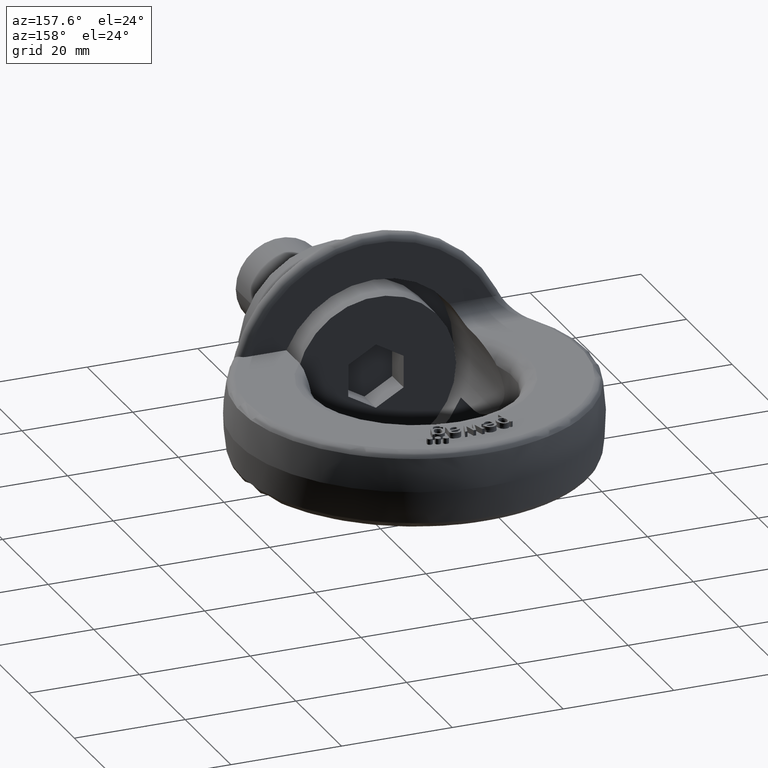
[diagram: clean part render]
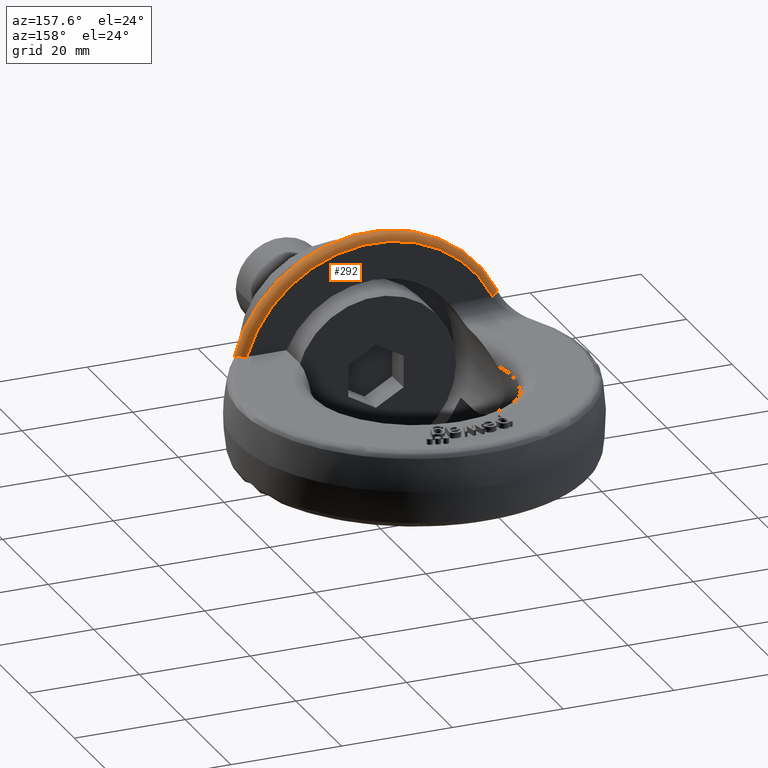
[diagram: same view with one face highlighted and labeled with its STEP entity id]
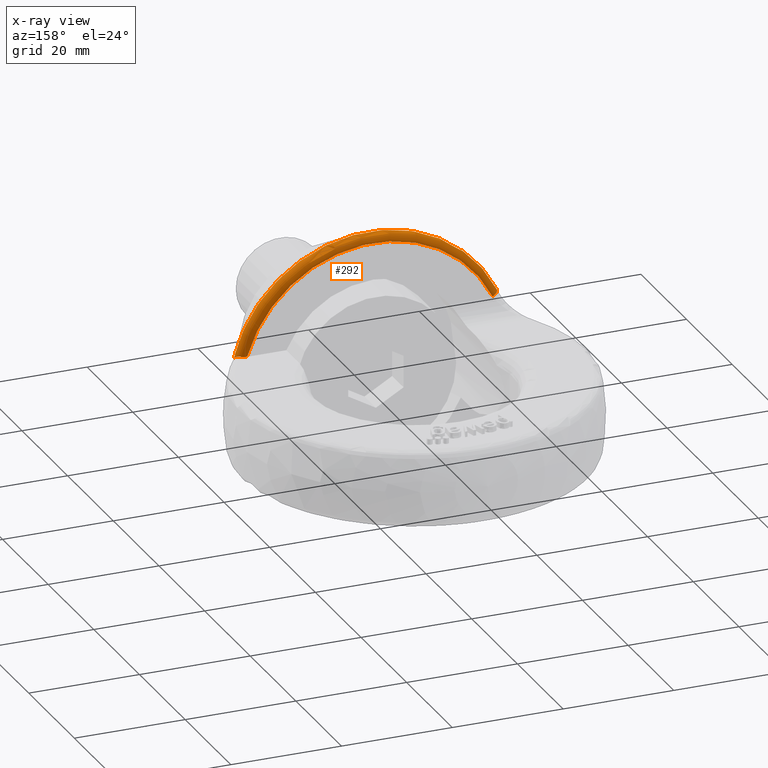
[diagram: x-ray of the same camera — body ghosted, the highlighted face saturated]
A machine part, auxiliary view. The second image highlights one B-rep face of the part: STEP entity #292.
The next image is the same camera in x-ray: the body ghosted, the highlighted face saturated — about 0% of this face is hidden behind the body in this view.
In plain terms, the highlighted toroidal blend (fillet) surface has major radius 23.9119 mm and minor (blend) radius 1.4 mm.
Its self-contained STEP definition (entity closure, byte-faithful):
#104=TOROIDAL_SURFACE('',#3077,23.9118750000001,1.4);
#135=FACE_OUTER_BOUND('',#674,.T.);
#292=ADVANCED_FACE('',(#135),#104,.T.);
#539=CIRCLE('',#3040,23.9118750000001);
#544=CIRCLE('',#3046,25.0906008034205);
#557=CIRCLE('',#3076,1.4);
#674=EDGE_LOOP('',(#1409,#1410,#1411,#1412,#1413));
#1409=ORIENTED_EDGE('',*,*,#2485,.T.);
#1410=ORIENTED_EDGE('',*,*,#2440,.F.);
#1411=ORIENTED_EDGE('',*,*,#2486,.T.);
#1412=ORIENTED_EDGE('',*,*,#2412,.F.);
#1413=ORIENTED_EDGE('',*,*,#2432,.F.);
#2133=VERTEX_POINT('',#3891);
#2134=VERTEX_POINT('',#3902);
#2153=VERTEX_POINT('',#4025);
#2160=VERTEX_POINT('',#4056);
#2161=VERTEX_POINT('',#4058);
#2412=EDGE_CURVE('',#2133,#2134,#2802,.T.);
#2432=EDGE_CURVE('',#2153,#2133,#539,.T.);
#2440=EDGE_CURVE('',#2160,#2161,#544,.T.);
#2485=EDGE_CURVE('',#2153,#2161,#557,.T.);
#2486=EDGE_CURVE('',#2160,#2134,#2828,.T.);
#2802=B_SPLINE_CURVE_WITH_KNOTS('',3,(#3892,#3893,#3894,#3895,#3896,#3897,
#3898,#3899,#3900,#3901),.UNSPECIFIED.,.F.,.F.,(4,3,3,4),(0.,0.447333156998258,
0.895325902209393,1.),.UNSPECIFIED.);
#2828=B_SPLINE_CURVE_WITH_KNOTS('',3,(#4243,#4244,#4245,#4246,#4247,#4248,
#4249,#4250,#4251,#4252,#4253,#4254,#4255,#4256,#4257,#4258,#4259,#4260,
#4261),.UNSPECIFIED.,.F.,.F.,(4,3,3,3,3,3,4),(0.,0.00338916832459166,0.0450894408813456,
0.331046961226858,0.612737651567356,0.805358670857438,1.),.UNSPECIFIED.);
#3040=AXIS2_PLACEMENT_3D('',#4026,#3229,#3230);
#3046=AXIS2_PLACEMENT_3D('',#4057,#3241,#3242);
#3076=AXIS2_PLACEMENT_3D('',#4242,#3320,#3321);
#3077=AXIS2_PLACEMENT_3D('',#4262,#3322,#3323);
#3229=DIRECTION('',(-1.94269602349167E-16,1.,0.));
#3230=DIRECTION('',(-1.,-1.45093053219524E-16,0.));
#3241=DIRECTION('',(1.94269602349167E-16,-1.,0.));
#3242=DIRECTION('',(1.,2.07415137991473E-16,0.));
#3320=DIRECTION('',(0.439112365717871,-5.25814281285391E-16,0.898432151179851));
#3321=DIRECTION('',(-0.898432151179851,0.,0.439112365717871));
#3322=DIRECTION('',(-1.94269602349167E-16,1.,0.));
#3323=DIRECTION('',(-1.,-2.05601933003004E-16,0.));
#3891=CARTESIAN_POINT('',(22.8643339289737,17.,7.00000000000001));
#3892=CARTESIAN_POINT('',(22.8643339289737,17.,7.00000000000001));
#3893=CARTESIAN_POINT('',(23.0334281651949,17.,7.00000000000001));
#3894=CARTESIAN_POINT('',(23.2048753134822,16.9712612395468,7.00000000000001));
#3895=CARTESIAN_POINT('',(23.3645466444706,16.9156022170652,7.00000000000001));
#3896=CARTESIAN_POINT('',(23.5243507253989,16.8598969199528,7.00000000000001));
#3897=CARTESIAN_POINT('',(23.6768723534385,16.7755375079905,7.00000000000001));
#3898=CARTESIAN_POINT('',(23.8082816833915,16.6688978699144,7.00000000000001));
#3899=CARTESIAN_POINT('',(23.8394307387561,16.6436201823128,7.00000000000001));
#3900=CARTESIAN_POINT('',(23.8695516871088,16.6170191706423,7.00000000000001));
#3901=CARTESIAN_POINT('',(23.8984744736748,16.5892217326695,7.00000000000001));
#3902=CARTESIAN_POINT('',(23.8984744736748,16.5892217326695,7.00000000000001));
#4025=CARTESIAN_POINT('',(-21.4831972949938,17.,10.5));
#4026=CARTESIAN_POINT('',(-1.92350511161869E-13,17.,0.));
#4056=CARTESIAN_POINT('',(24.3928327444381,14.8446156737455,5.87604964057208));
#4057=CARTESIAN_POINT('',(-9.91757992758659E-14,14.8446156737455,0.));
#4058=CARTESIAN_POINT('',(-22.5422024542121,14.8446156737456,11.0175930760727));
#4242=CARTESIAN_POINT('',(-21.4831972949939,15.6000000000001,10.5));
#4243=CARTESIAN_POINT('',(24.3928327444381,14.8446156737455,5.87604964057208));
#4244=CARTESIAN_POINT('',(24.3934334485346,14.846223966962,5.87795692552089));
#4245=CARTESIAN_POINT('',(24.3940308685918,14.8478344904822,5.87986336842981));
#4246=CARTESIAN_POINT('',(24.3946248903987,14.8494471154824,5.88176908799452));
#4247=CARTESIAN_POINT('',(24.4020118406183,14.8695008920628,5.90546763810398));
#4248=CARTESIAN_POINT('',(24.4088804125153,14.8898899502045,5.92905241603229));
#4249=CARTESIAN_POINT('',(24.4152214800186,14.9105924803118,5.95249465090964));
#4250=CARTESIAN_POINT('',(24.458301402964,15.0512412592965,6.11175642688936));
#4251=CARTESIAN_POINT('',(24.4773635160335,15.2081477697185,6.26630714894797));
#4252=CARTESIAN_POINT('',(24.4688616949492,15.3738315291091,6.40587391788503));
#4253=CARTESIAN_POINT('',(24.4605062587704,15.5366625348092,6.54303761716335));
#4254=CARTESIAN_POINT('',(24.4250890393028,15.7121103318796,6.66901252169402));
#4255=CARTESIAN_POINT('',(24.3588383386202,15.8880968647863,6.7691984240222));
#4256=CARTESIAN_POINT('',(24.313301972321,16.0090584115111,6.83805961189537));
#4257=CARTESIAN_POINT('',(24.2522087245338,16.1326041406077,6.89595830623059));
#4258=CARTESIAN_POINT('',(24.17597238626,16.2509863081971,6.93621750096313));
#4259=CARTESIAN_POINT('',(24.0992532747016,16.370118141224,6.97673164056992));
#4260=CARTESIAN_POINT('',(24.0047315230564,16.4870990090305,7.00000000000001));
#4261=CARTESIAN_POINT('',(23.8984744736748,16.5892217326695,7.00000000000001));
#4262=CARTESIAN_POINT('',(-1.9207853371858E-13,15.6,0.));